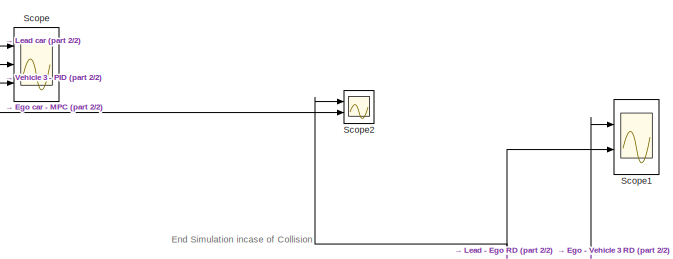
[diagram: root canvas - part 1/2, top center region]
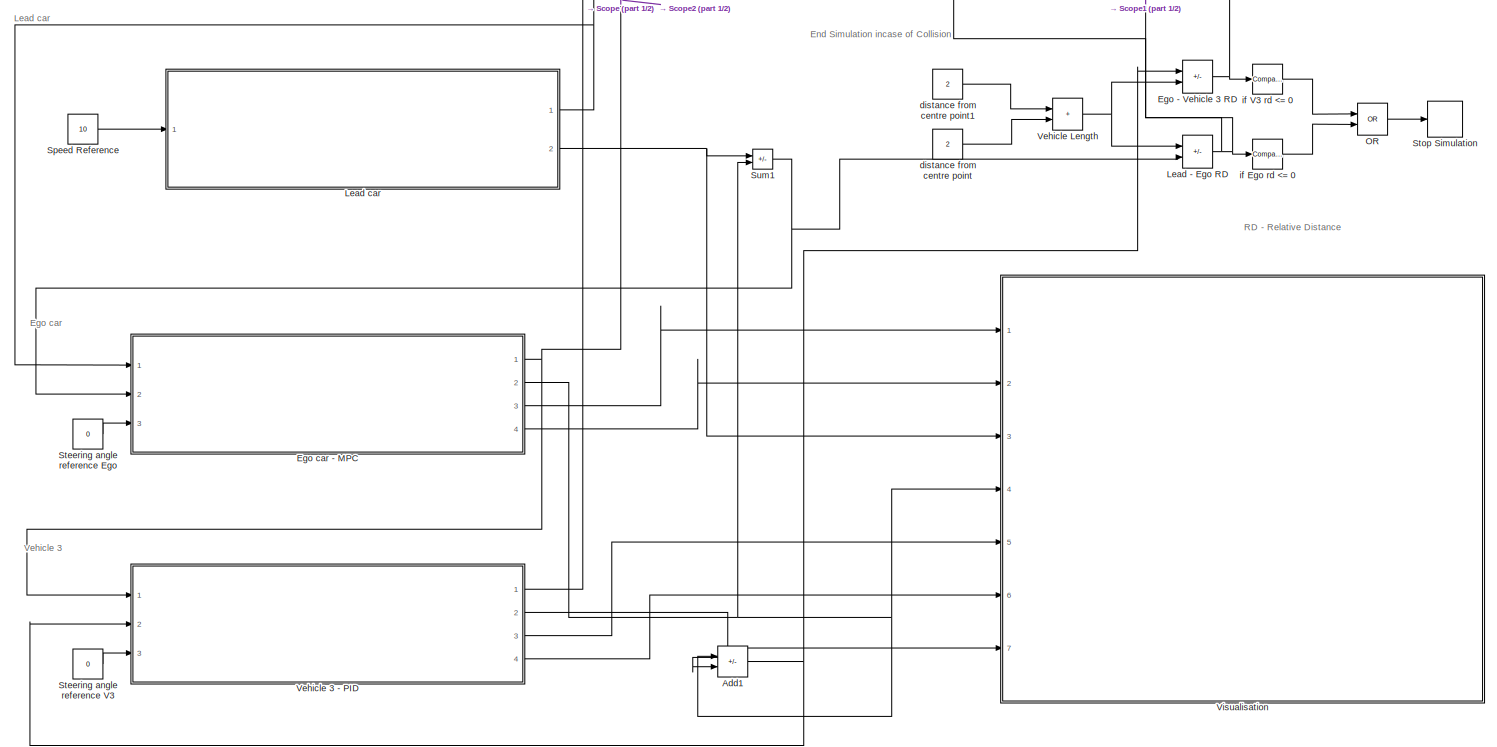
[diagram: root canvas - part 2/2, most of the canvas]
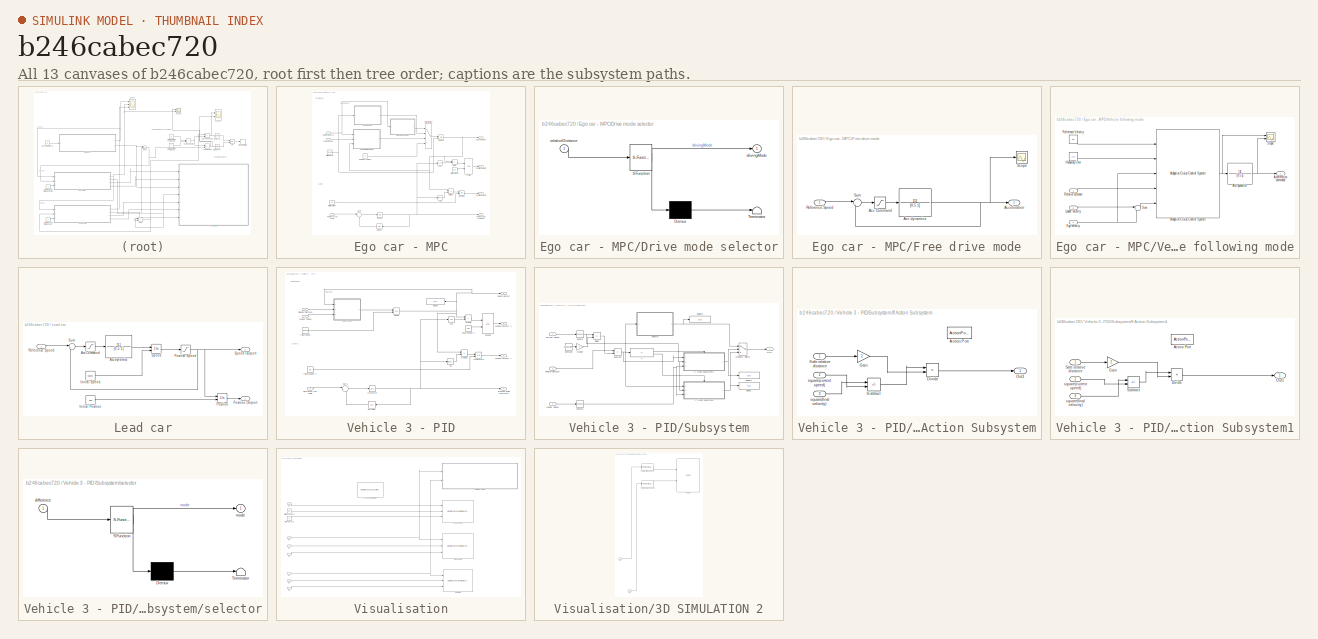
[diagram: thumbnail index - all 13 canvases of the model, root first then tree order]
MODEL slx_b246cabec720
KIND model
CONFIG AbsTol = auto
CONFIG EnableMultiTasking = off
CONFIG FixedStep = auto
CONFIG MaxStep = auto
CONFIG MinStep = auto
CONFIG RelTol = 1e-3
CONFIG SampleTimeConstraint = Unconstrained
CONFIG SolverName = VariableStepAuto
CONFIG StartTime = 0.0
CONFIG StopTime = 100
BLOCK [Sum] Add1
  IconShape = rectangular
  Inputs = +-
  Ports = [2, 1]
BLOCK [Sum] Ego - Vehicle 3 RD
  IconShape = rectangular
  Inputs = +-
  Ports = [2, 1]
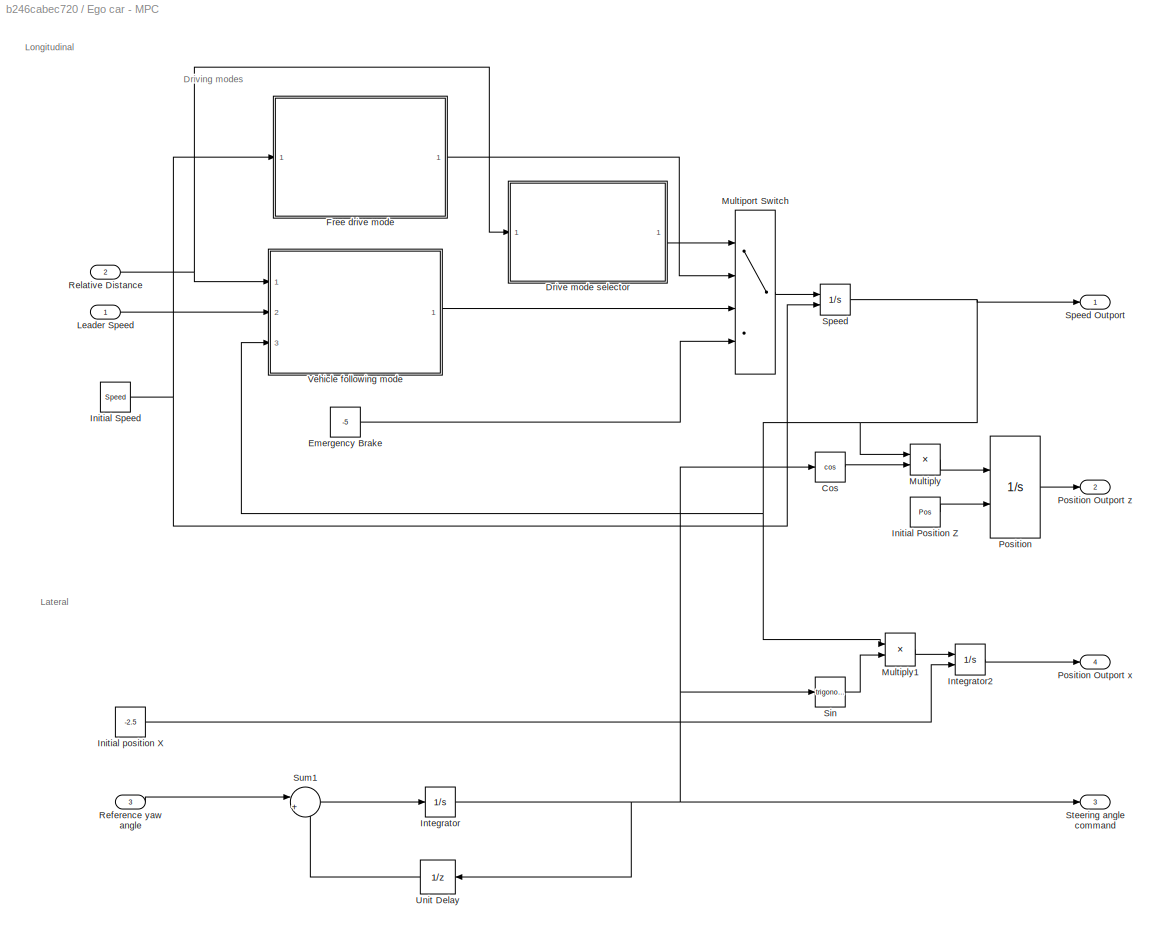
BLOCK [SubSystem] Ego car - MPC
  Ports = [3, 4]
  RequestExecContextInheritance = off
BLOCK [Trigonometry] Ego car - MPC/Cos
  Operator = cos
  Ports = [1, 1]
BLOCK [SubSystem] Ego car - MPC/Drive mode selector
  ErrorFcn = Stateflow.Translate.translate
  PermitHierarchicalResolution = ExplicitOnly
  Ports = [1, 1]
  RequestExecContextInheritance = off
  SFBlockType = Chart
  TreatAsAtomicUnit = on
BLOCK [Demux] Ego car - MPC/Drive mode selector/ Demux 
  Outputs = 1
  Ports = [1, 1]
BLOCK [S-Function] Ego car - MPC/Drive mode selector/ SFunction 
  EnableBusSupport = on
  FunctionName = sf_sfun
  PortCounts = [1 2]
  Ports = [1, 2]
  SFcnIsStateOwnerBlock = off
  SFunctionDeploymentMode = off
  Tag = Stateflow S-Function 3
BLOCK [Terminator] Ego car - MPC/Drive mode selector/ Terminator 
BLOCK [Outport] Ego car - MPC/Drive mode selector/drivingMode
  VectorParamsAs1DForOutWhenUnconnected = off
BLOCK [Inport] Ego car - MPC/Drive mode selector/relativeDistance
BLOCK [Constant] Ego car - MPC/Emergency Brake
  Value = -5
BLOCK [SubSystem] Ego car - MPC/Free drive mode
  Ports = [1, 1]
  RequestExecContextInheritance = off
BLOCK [Saturate] Ego car - MPC/Free drive mode/Acc Command
  LowerLimit = -3
  UpperLimit = 3
BLOCK [TransferFcn] Ego car - MPC/Free drive mode/Acc dynamics
  Denominator = [0.5 1]
BLOCK [Outport] Ego car - MPC/Free drive mode/Acceleration
  VectorParamsAs1DForOutWhenUnconnected = off
BLOCK [Inport] Ego car - MPC/Free drive mode/Reference Speed
BLOCK [Scope] Ego car - MPC/Free drive mode/Scope
  Floating = off
  NumInputPorts = 1
  Ports = [1]
  ScopeSpecificationString = Simulink.scopes.TimeScopeBlockCfg('CurrentConfiguration', extmgr.ConfigurationSet(extmgr.Configuration('Core','General UI',true),extmgr.Configuration('Core','Source UI',true),extmgr.Configuration('Sources','WiredSimulink',true,'DataLoggingVariableName','ScopeData4'),extmgr.Configuration('Visuals','Time Domain',true,'SerializedDisplays',{struct('MinYLimReal','-0.375','MaxYLimReal','3.375','YLabelRe...<+1359ch>
BLOCK [Sum] Ego car - MPC/Free drive mode/Sum
  Inputs = |+-
  Ports = [2, 1]
BLOCK [Constant] Ego car - MPC/Initial Position Z
  Value = Pos
BLOCK [Constant] Ego car - MPC/Initial Speed
  Value = Speed
BLOCK [Constant] Ego car - MPC/Initial position X
  Value = -2.5
BLOCK [Integrator] Ego car - MPC/Integrator
  Ports = [1, 1]
BLOCK [Integrator] Ego car - MPC/Integrator2
  InitialConditionSource = external
  Ports = [2, 1]
BLOCK [Inport] Ego car - MPC/Leader Speed
BLOCK [Product] Ego car - MPC/Multiply
  Ports = [2, 1]
BLOCK [Product] Ego car - MPC/Multiply1
  Ports = [2, 1]
BLOCK [MultiPortSwitch] Ego car - MPC/Multiport Switch
  InputSameDT = off
  Ports = [4, 1]
  SaturateOnIntegerOverflow = off
BLOCK [Integrator] Ego car - MPC/Position
  InitialConditionSource = external
  Ports = [2, 1]
BLOCK [Outport] Ego car - MPC/Position Outport x
  Port = 4
  VectorParamsAs1DForOutWhenUnconnected = off
BLOCK [Outport] Ego car - MPC/Position Outport z
  Port = 2
  VectorParamsAs1DForOutWhenUnconnected = off
BLOCK [Inport] Ego car - MPC/Reference yaw angle
  Port = 3
BLOCK [Inport] Ego car - MPC/Relative Distance
  Port = 2
BLOCK [Trigonometry] Ego car - MPC/Sin
  Ports = [1, 1]
BLOCK [Integrator] Ego car - MPC/Speed
  InitialConditionSource = external
  LimitOutput = on
  LowerSaturationLimit = 0
  Ports = [2, 1]
BLOCK [Outport] Ego car - MPC/Speed Outport
  VectorParamsAs1DForOutWhenUnconnected = off
BLOCK [Outport] Ego car - MPC/Steering angle command
  Port = 3
  VectorParamsAs1DForOutWhenUnconnected = off
BLOCK [Sum] Ego car - MPC/Sum1
  Inputs = |+-
  Ports = [2, 1]
BLOCK [UnitDelay] Ego car - MPC/Unit Delay
  HasFrameUpgradeWarning = on
  NameLocation = top
  SampleTime = -1
BLOCK [SubSystem] Ego car - MPC/Vehicle following mode
  Ports = [3, 1]
  RequestExecContextInheritance = off
BLOCK [TransferFcn] Ego car - MPC/Vehicle following mode/Acc dynamics
  Denominator = [0.5 1]
BLOCK [Outport] Ego car - MPC/Vehicle following mode/Acceleration command
  VectorParamsAs1DForOutWhenUnconnected = off
BLOCK [Reference] Ego car - MPC/Vehicle following mode/Adaptive Cruise Control System  REF=mpcadaslib/Adaptive Cruise Control System
  Ports = [5, 1]
  SourceBlock = mpcadaslib/Adaptive Cruise Control System
  SourceProductBaseCode = MP
  SourceType = Adaptive cruise control (ACC) system
BLOCK [Inport] Ego car - MPC/Vehicle following mode/Ego velocity
  Port = 3
BLOCK [Constant] Ego car - MPC/Vehicle following mode/Headway time
  Value = 1.2
BLOCK [Inport] Ego car - MPC/Vehicle following mode/Leader velocity
  Port = 2
BLOCK [Inport] Ego car - MPC/Vehicle following mode/Relative distance
BLOCK [Constant] Ego car - MPC/Vehicle following mode/Rerference Velocity
  Value = 25
BLOCK [Scope] Ego car - MPC/Vehicle following mode/Scope
  Floating = off
  NumInputPorts = 2
  Ports = [2]
  ScopeSpecificationString = Simulink.scopes.TimeScopeBlockCfg('CurrentConfiguration', extmgr.ConfigurationSet(extmgr.Configuration('Core','General UI',true,'FigureColor',[1 1 1]),extmgr.Configuration('Core','Source UI',true),extmgr.Configuration('Sources','WiredSimulink',true,'DataLoggingVariableName','ScopeData3'),extmgr.Configuration('Visuals','Time Domain',true,'SerializedDisplays',{struct('MinYLimReal','-3.375','MaxYLimR...<+1892ch>
BLOCK [Sum] Ego car - MPC/Vehicle following mode/Sum
  Inputs = |+-
  Ports = [2, 1]
BLOCK [Sum] Lead - Ego RD
  IconShape = rectangular
  Inputs = -+
  Ports = [2, 1]
BLOCK [SubSystem] Lead car
  Ports = [1, 2]
  RequestExecContextInheritance = off
BLOCK [Saturate] Lead car/Acc Command
  LowerLimit = -3
  UpperLimit = 2
BLOCK [TransferFcn] Lead car/Acc dynamics
  Denominator = [0.5 1]
BLOCK [Constant] Lead car/Initial Position
  Value = Pos
BLOCK [Constant] Lead car/Initial Speed
  Value = Speed
BLOCK [Integrator] Lead car/Position
  InitialConditionSource = external
  Ports = [2, 1]
BLOCK [Outport] Lead car/Position Outport
  Port = 2
  VectorParamsAs1DForOutWhenUnconnected = off
BLOCK [Saturate] Lead car/Positive Speed
  LowerLimit = 0
  UpperLimit = inf
BLOCK [Inport] Lead car/Reference Speed
BLOCK [Integrator] Lead car/Speed
  InitialConditionSource = external
  Ports = [2, 1]
BLOCK [Outport] Lead car/Speed Outport
  VectorParamsAs1DForOutWhenUnconnected = off
BLOCK [Sum] Lead car/Sum
  Inputs = |+-
  Ports = [2, 1]
BLOCK [Logic] OR
  AllPortsSameDT = off
  IconShape = distinctive
  Operator = OR
  OutDataTypeStr = boolean
  Ports = [2, 1]
BLOCK [Scope] Scope
  Floating = off
  NumInputPorts = 3
  Ports = [3]
  ScopeSpecificationString = Simulink.scopes.TimeScopeBlockCfg('CurrentConfiguration', extmgr.ConfigurationSet(extmgr.Configuration('Core','General UI',true,'FigureColor',[1 1 1]),extmgr.Configuration('Core','Source UI',true),extmgr.Configuration('Sources','WiredSimulink',true,'DataLoggingVariableName','ScopeData1'),extmgr.Configuration('Visuals','Time Domain',true,'SerializedDisplays',{struct('MinYLimReal','4.125','MaxYLimRe...<+1760ch>
BLOCK [Scope] Scope1
  Floating = off
  NumInputPorts = 2
  Ports = [2]
  ScopeSpecificationString = Simulink.scopes.TimeScopeBlockCfg('CurrentConfiguration', extmgr.ConfigurationSet(extmgr.Configuration('Core','General UI',true,'FigureColor',[1 1 1]),extmgr.Configuration('Core','Source UI',true),extmgr.Configuration('Sources','WiredSimulink',true,'DataLoggingVariableName','ScopeData2'),extmgr.Configuration('Visuals','Time Domain',true,'SerializedDisplays',{struct('MinYLimReal','4.07211','MaxYLim...<+1697ch>
BLOCK [Scope] Scope2
  Floating = off
  NumInputPorts = 2
  Ports = [2]
  ScopeSpecificationString = Simulink.scopes.TimeScopeBlockCfg('CurrentConfiguration', extmgr.ConfigurationSet(extmgr.Configuration('Core','General UI',true,'FigureColor',[1 1 1]),extmgr.Configuration('Core','Source UI',true),extmgr.Configuration('Sources','WiredSimulink',true,'DataLoggingVariableName','ScopeData4'),extmgr.Configuration('Visuals','Time Domain',true,'SerializedDisplays',{struct('MinYLimReal','-2.5','MaxYLimRea...<+1788ch>
BLOCK [Constant] Speed Reference
  Value = 10
BLOCK [Constant] Steering angle reference Ego
  Value = 0
BLOCK [Constant] Steering angle reference V3
  Value = 0
BLOCK [Stop] Stop Simulation
BLOCK [Sum] Sum1
  IconShape = rectangular
  Inputs = |+-
  Ports = [2, 1]
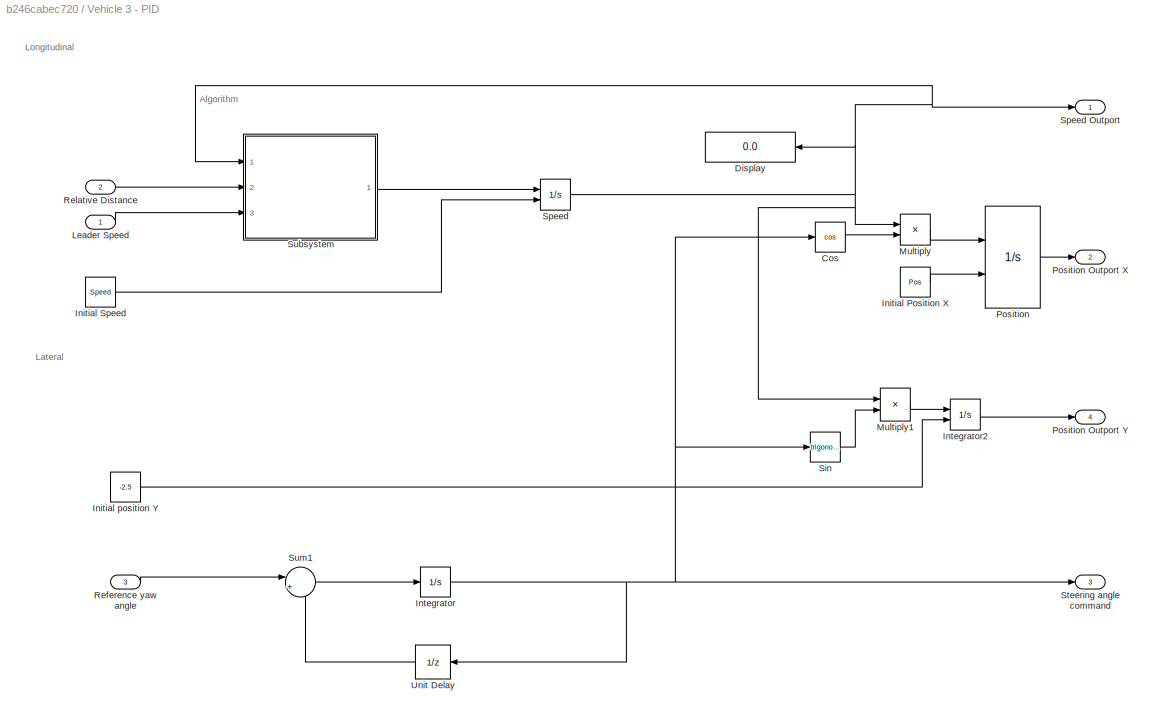
BLOCK [SubSystem] Vehicle 3 - PID
  Ports = [3, 4]
  RequestExecContextInheritance = off
BLOCK [Trigonometry] Vehicle 3 - PID/Cos
  Operator = cos
  Ports = [1, 1]
BLOCK [Display] Vehicle 3 - PID/Display
  Decimation = 1
  NameLocation = top
  Ports = [1]
BLOCK [Constant] Vehicle 3 - PID/Initial Position X
  Value = Pos
BLOCK [Constant] Vehicle 3 - PID/Initial Speed
  Value = Speed
BLOCK [Constant] Vehicle 3 - PID/Initial position Y
  Value = -2.5
BLOCK [Integrator] Vehicle 3 - PID/Integrator
  Ports = [1, 1]
BLOCK [Integrator] Vehicle 3 - PID/Integrator2
  InitialConditionSource = external
  Ports = [2, 1]
BLOCK [Inport] Vehicle 3 - PID/Leader Speed
BLOCK [Product] Vehicle 3 - PID/Multiply
  Ports = [2, 1]
BLOCK [Product] Vehicle 3 - PID/Multiply1
  Ports = [2, 1]
BLOCK [Integrator] Vehicle 3 - PID/Position
  InitialConditionSource = external
  Ports = [2, 1]
BLOCK [Outport] Vehicle 3 - PID/Position Outport X
  Port = 2
  VectorParamsAs1DForOutWhenUnconnected = off
BLOCK [Outport] Vehicle 3 - PID/Position Outport Y
  Port = 4
  VectorParamsAs1DForOutWhenUnconnected = off
BLOCK [Inport] Vehicle 3 - PID/Reference yaw angle
  Port = 3
BLOCK [Inport] Vehicle 3 - PID/Relative Distance
  Port = 2
BLOCK [Trigonometry] Vehicle 3 - PID/Sin
  Ports = [1, 1]
BLOCK [Integrator] Vehicle 3 - PID/Speed
  InitialConditionSource = external
  LimitOutput = on
  LowerSaturationLimit = 0
  Ports = [2, 1]
BLOCK [Outport] Vehicle 3 - PID/Speed Outport
  VectorParamsAs1DForOutWhenUnconnected = off
BLOCK [Outport] Vehicle 3 - PID/Steering angle command
  Port = 3
  VectorParamsAs1DForOutWhenUnconnected = off
BLOCK [SubSystem] Vehicle 3 - PID/Subsystem
  Ports = [3, 1]
  RequestExecContextInheritance = off
BLOCK [Constant] Vehicle 3 - PID/Subsystem/Constant
  Value = acceleration_due_to_gravity
BLOCK [Inport] Vehicle 3 - PID/Subsystem/Current speed
BLOCK [Display] Vehicle 3 - PID/Subsystem/Display
  Decimation = 1
  Ports = [1]
BLOCK [Display] Vehicle 3 - PID/Subsystem/Display1
  Decimation = 1
  Ports = [1]
BLOCK [Display] Vehicle 3 - PID/Subsystem/Display2
  Decimation = 1
  Ports = [1]
BLOCK [Product] Vehicle 3 - PID/Subsystem/Divide
  Inputs = */
  Ports = [2, 1]
BLOCK [If] Vehicle 3 - PID/Subsystem/If
  Ports = [1, 2]
BLOCK [SubSystem] Vehicle 3 - PID/Subsystem/If Action Subsystem
  Ports = [3, 1, 0, 0, 0, 0, 0, 1]
  RequestExecContextInheritance = off
  TreatAsAtomicUnit = on
BLOCK [ActionPort] Vehicle 3 - PID/Subsystem/If Action Subsystem/Action Port
  ActionPortLabel = else
BLOCK [Product] Vehicle 3 - PID/Subsystem/If Action Subsystem/Divide
  Inputs = */
  Ports = [2, 1]
BLOCK [Gain] Vehicle 3 - PID/Subsystem/If Action Subsystem/Gain
  Gain = 2
BLOCK [Outport] Vehicle 3 - PID/Subsystem/If Action Subsystem/Out1
BLOCK [Inport] Vehicle 3 - PID/Subsystem/If Action Subsystem/Safe relative distance
BLOCK [Sum] Vehicle 3 - PID/Subsystem/If Action Subsystem/Subtract
  IconShape = rectangular
  Inputs = +-
  Ports = [2, 1]
BLOCK [Inport] Vehicle 3 - PID/Subsystem/If Action Subsystem/square(current speed)
  Port = 2
BLOCK [Inport] Vehicle 3 - PID/Subsystem/If Action Subsystem/square(final velocity)
  Port = 3
BLOCK [SubSystem] Vehicle 3 - PID/Subsystem/If Action Subsystem1
  Ports = [3, 1, 0, 0, 0, 0, 0, 1]
  RequestExecContextInheritance = off
  TreatAsAtomicUnit = on
BLOCK [ActionPort] Vehicle 3 - PID/Subsystem/If Action Subsystem1/Action Port
  ActionPortLabel = if(u1 > 0)
BLOCK [Product] Vehicle 3 - PID/Subsystem/If Action Subsystem1/Divide
  Inputs = */
  Ports = [2, 1]
BLOCK [Gain] Vehicle 3 - PID/Subsystem/If Action Subsystem1/Gain
  Gain = 2
BLOCK [Outport] Vehicle 3 - PID/Subsystem/If Action Subsystem1/Out1
BLOCK [Inport] Vehicle 3 - PID/Subsystem/If Action Subsystem1/Safe relative distance
BLOCK [Sum] Vehicle 3 - PID/Subsystem/If Action Subsystem1/Subtract
  IconShape = rectangular
  Inputs = +-
  Ports = [2, 1]
BLOCK [Inport] Vehicle 3 - PID/Subsystem/If Action Subsystem1/square(current speed)
  Port = 2
BLOCK [Inport] Vehicle 3 - PID/Subsystem/If Action Subsystem1/square(final velocity)
  Port = 3
BLOCK [Inport] Vehicle 3 - PID/Subsystem/Leader Speed
  Port = 3
BLOCK [Gain] Vehicle 3 - PID/Subsystem/Multiply
  Gain = 2
BLOCK [MultiPortSwitch] Vehicle 3 - PID/Subsystem/Multiport Switch
  InputSameDT = off
  Inputs = 2
  Ports = [3, 1]
  SaturateOnIntegerOverflow = off
BLOCK [Outport] Vehicle 3 - PID/Subsystem/Out1
BLOCK [Inport] Vehicle 3 - PID/Subsystem/Relative Distance
  Port = 2
BLOCK [Math] Vehicle 3 - PID/Subsystem/Square
  Operator = square
  Ports = [1, 1]
BLOCK [Math] Vehicle 3 - PID/Subsystem/Square1
  Operator = square
  Ports = [1, 1]
BLOCK [Sum] Vehicle 3 - PID/Subsystem/Subtract
  IconShape = rectangular
  Inputs = +-
  Ports = [2, 1]
BLOCK [SubSystem] Vehicle 3 - PID/Subsystem/selector
  ErrorFcn = Stateflow.Translate.translate
  PermitHierarchicalResolution = ExplicitOnly
  Ports = [1, 1]
  RequestExecContextInheritance = off
  SFBlockType = Chart
  TreatAsAtomicUnit = on
BLOCK [Demux] Vehicle 3 - PID/Subsystem/selector/ Demux 
  Outputs = 1
  Ports = [1, 1]
BLOCK [S-Function] Vehicle 3 - PID/Subsystem/selector/ SFunction 
  EnableBusSupport = on
  FunctionName = sf_sfun
  PortCounts = [1 2]
  Ports = [1, 2]
  SFcnIsStateOwnerBlock = off
  SFunctionDeploymentMode = off
  Tag = Stateflow S-Function 1
BLOCK [Terminator] Vehicle 3 - PID/Subsystem/selector/ Terminator 
BLOCK [Inport] Vehicle 3 - PID/Subsystem/selector/difference
BLOCK [Outport] Vehicle 3 - PID/Subsystem/selector/mode
  VectorParamsAs1DForOutWhenUnconnected = off
BLOCK [Sum] Vehicle 3 - PID/Sum1
  Inputs = |+-
  Ports = [2, 1]
BLOCK [UnitDelay] Vehicle 3 - PID/Unit Delay
  HasFrameUpgradeWarning = on
  NameLocation = top
  SampleTime = -1
BLOCK [Sum] Vehicle Length
  IconShape = rectangular
  Inputs = +|+
  Ports = [2, 1]
BLOCK [SubSystem] Visualisation
  Ports = [7]
  RequestExecContextInheritance = off
BLOCK [SubSystem] Visualisation/3D SIMULATION 2
  Commented = on
  Ports = [2]
  RequestExecContextInheritance = off
BLOCK [Inport] Visualisation/3D SIMULATION 2/In1
BLOCK [Inport] Visualisation/3D SIMULATION 2/In2
  Port = 2
BLOCK [Reference] Visualisation/3D SIMULATION 2/VR Signal Expander  REF=vrlib/VR Signal Expander
  Ports = [1, 1]
  SourceBlock = vrlib/VR Signal Expander
  SourceProductBaseCode = SL
  SourceType = VR Signal Expander
BLOCK [Reference] Visualisation/3D SIMULATION 2/VR Signal Expander1  REF=vrlib/VR Signal Expander
  Ports = [1, 1]
  SourceBlock = vrlib/VR Signal Expander
  SourceProductBaseCode = SL
  SourceType = VR Signal Expander
BLOCK [Reference] Visualisation/3D SIMULATION 2/VR Sink  REF=vrlib/VR Sink
  InstantiateOnLoad = on
  Ports = [2]
  SourceBlock = vrlib/VR Sink
  SourceProductBaseCode = SL
  SourceType = Virtual Reality Sink
BLOCK [Reference] Visualisation/Ego Vehicle  REF=sim3dautolib/Simulation 3D Vehicle with Ground Following
  Ports = [3]
  Priority = -1
  SourceBlock = sim3dautolib/Simulation 3D Vehicle with Ground Following
  SourceProductBaseCode = DR,UV,VE
  SourceType = Simulation 3D Vehicle with Ground Following
BLOCK [Inport] Visualisation/In1
BLOCK [Inport] Visualisation/In2
  Port = 2
BLOCK [Inport] Visualisation/In3
  Port = 3
BLOCK [Inport] Visualisation/In4
  Port = 4
BLOCK [Inport] Visualisation/In5
  Port = 5
BLOCK [Inport] Visualisation/In6
  Port = 6
BLOCK [Inport] Visualisation/In7
  Port = 7
BLOCK [Reference] Visualisation/Lead Vehicle  REF=sim3dautolib/Simulation 3D Vehicle with Ground Following
  Ports = [3]
  Priority = -1
  SourceBlock = sim3dautolib/Simulation 3D Vehicle with Ground Following
  SourceProductBaseCode = DR,UV,VE
  SourceType = Simulation 3D Vehicle with Ground Following
BLOCK [Reference] Visualisation/Scene Configuration  REF=sim3dlib/Simulation 3D Scene Configuration
  Ports = []
  Priority = 0
  SourceBlock = sim3dlib/Simulation 3D Scene Configuration
  SourceProductBaseCode = DR,UV,VE
  SourceType = Simulation 3D Scene Configuration
BLOCK [Reference] Visualisation/Vehicle 3  REF=sim3dautolib/Simulation 3D Vehicle with Ground Following
  Ports = [3]
  Priority = -1
  SourceBlock = sim3dautolib/Simulation 3D Vehicle with Ground Following
  SourceProductBaseCode = DR,UV,VE
  SourceType = Simulation 3D Vehicle with Ground Following
BLOCK [Constant] Visualisation/initialYPosLead
  Value = -2.5
BLOCK [Constant] Visualisation/intialYawLead
  Value = 0
BLOCK [Constant] distance from centre point
  Value = 2
BLOCK [Constant] distance from centre point1
  Value = 2
BLOCK [Reference] if Ego rd <= 0  REF=simulink/Logic and Bit
Operations/Compare
To Constant
  Ports = [1, 1]
  SourceBlock = simulink/Logic and Bit\nOperations/Compare\nTo Constant
  SourceProductBaseCode = SL
  SourceType = Compare To Constant
BLOCK [Reference] if V3 rd <= 0  REF=simulink/Logic and Bit
Operations/Compare
To Constant
  Ports = [1, 1]
  SourceBlock = simulink/Logic and Bit\nOperations/Compare\nTo Constant
  SourceProductBaseCode = SL
  SourceType = Compare To Constant
ANNOTATION (root): RD - Relative Distance
ANNOTATION (root): Ego car
ANNOTATION (root): End Simulation incase of Collision
ANNOTATION (root): Lead car
ANNOTATION (root): Vehicle 3
ANNOTATION Ego car - MPC: Driving modes
ANNOTATION Ego car - MPC: Lateral
ANNOTATION Ego car - MPC: Longitudinal
ANNOTATION Vehicle 3 - PID: Algorithm
ANNOTATION Vehicle 3 - PID: Lateral
ANNOTATION Vehicle 3 - PID: Longitudinal
NET Add1:1 -> Ego - Vehicle 3 RD:1, Vehicle 3 - PID:2
NET Ego - Vehicle 3 RD:1 -> Scope1:1, if V3 rd <= 0:1
LINE Ego car - MPC/Cos:1 -> Ego car - MPC/Multiply:2
LINE Ego car - MPC/Drive mode selector:1 -> Ego car - MPC/Multiport Switch:1
LINE Ego car - MPC/Emergency Brake:1 -> Ego car - MPC/Multiport Switch:4
LINE Ego car - MPC/Free drive mode/Acc Command:1 -> Ego car - MPC/Free drive mode/Acc dynamics:1
NET Ego car - MPC/Free drive mode/Acc dynamics:1 -> Ego car - MPC/Free drive mode/Acceleration:1, Ego car - MPC/Free drive mode/Scope:1, Ego car - MPC/Free drive mode/Sum:2
LINE Ego car - MPC/Free drive mode/Reference Speed:1 -> Ego car - MPC/Free drive mode/Sum:1
LINE Ego car - MPC/Free drive mode/Sum:1 -> Ego car - MPC/Free drive mode/Acc Command:1
LINE Ego car - MPC/Free drive mode:1 -> Ego car - MPC/Multiport Switch:2
LINE Ego car - MPC/Initial Position Z:1 -> Ego car - MPC/Position:2
NET Ego car - MPC/Initial Speed:1 -> Ego car - MPC/Free drive mode:1, Ego car - MPC/Speed:2
LINE Ego car - MPC/Initial position X:1 -> Ego car - MPC/Integrator2:2
LINE Ego car - MPC/Integrator2:1 -> Ego car - MPC/Position Outport x:1
NET Ego car - MPC/Integrator:1 -> Ego car - MPC/Cos:1, Ego car - MPC/Sin:1, Ego car - MPC/Steering angle command:1, Ego car - MPC/Unit Delay:1
LINE Ego car - MPC/Leader Speed:1 -> Ego car - MPC/Vehicle following mode:2
LINE Ego car - MPC/Multiply1:1 -> Ego car - MPC/Integrator2:1
LINE Ego car - MPC/Multiply:1 -> Ego car - MPC/Position:1
LINE Ego car - MPC/Multiport Switch:1 -> Ego car - MPC/Speed:1
LINE Ego car - MPC/Position:1 -> Ego car - MPC/Position Outport z:1
LINE Ego car - MPC/Reference yaw angle:1 -> Ego car - MPC/Sum1:1
NET Ego car - MPC/Relative Distance:1 -> Ego car - MPC/Drive mode selector:1, Ego car - MPC/Vehicle following mode:1
LINE Ego car - MPC/Sin:1 -> Ego car - MPC/Multiply1:2
NET Ego car - MPC/Speed:1 -> Ego car - MPC/Multiply1:1, Ego car - MPC/Multiply:1, Ego car - MPC/Speed Outport:1, Ego car - MPC/Vehicle following mode:3
LINE Ego car - MPC/Sum1:1 -> Ego car - MPC/Integrator:1
LINE Ego car - MPC/Unit Delay:1 -> Ego car - MPC/Sum1:2
NET Ego car - MPC/Vehicle following mode/Acc dynamics:1 -> Ego car - MPC/Vehicle following mode/Acceleration command:1, Ego car - MPC/Vehicle following mode/Scope:2
NET Ego car - MPC/Vehicle following mode/Adaptive Cruise Control System:1 -> Ego car - MPC/Vehicle following mode/Acc dynamics:1, Ego car - MPC/Vehicle following mode/Scope:1
NET Ego car - MPC/Vehicle following mode/Ego velocity:1 -> Ego car - MPC/Vehicle following mode/Adaptive Cruise Control System:3, Ego car - MPC/Vehicle following mode/Sum:2
LINE Ego car - MPC/Vehicle following mode/Headway time:1 -> Ego car - MPC/Vehicle following mode/Adaptive Cruise Control System:2
LINE Ego car - MPC/Vehicle following mode/Leader velocity:1 -> Ego car - MPC/Vehicle following mode/Sum:1
LINE Ego car - MPC/Vehicle following mode/Relative distance:1 -> Ego car - MPC/Vehicle following mode/Adaptive Cruise Control System:4
LINE Ego car - MPC/Vehicle following mode/Rerference Velocity:1 -> Ego car - MPC/Vehicle following mode/Adaptive Cruise Control System:1
LINE Ego car - MPC/Vehicle following mode/Sum:1 -> Ego car - MPC/Vehicle following mode/Adaptive Cruise Control System:5
LINE Ego car - MPC/Vehicle following mode:1 -> Ego car - MPC/Multiport Switch:3
NET Ego car - MPC:1 -> Scope2:2, Scope:2, Vehicle 3 - PID:1
NET Ego car - MPC:2 -> Add1:1, Sum1:2, Visualisation:4
LINE Ego car - MPC:3 -> Visualisation:1
LINE Ego car - MPC:4 -> Visualisation:2
NET Lead - Ego RD:1 -> Scope1:2, Scope2:1, if Ego rd <= 0:1
LINE Lead car/Acc Command:1 -> Lead car/Acc dynamics:1
LINE Lead car/Acc dynamics:1 -> Lead car/Speed:1
LINE Lead car/Initial Position:1 -> Lead car/Position:2
LINE Lead car/Initial Speed:1 -> Lead car/Speed:2
LINE Lead car/Position:1 -> Lead car/Position Outport:1
NET Lead car/Positive Speed:1 -> Lead car/Position:1, Lead car/Speed Outport:1, Lead car/Sum:2
LINE Lead car/Reference Speed:1 -> Lead car/Sum:1
LINE Lead car/Speed:1 -> Lead car/Positive Speed:1
LINE Lead car/Sum:1 -> Lead car/Acc Command:1
NET Lead car:1 -> Ego car - MPC:1, Scope:1
NET Lead car:2 -> Sum1:1, Visualisation:3
LINE OR:1 -> Stop Simulation:1
LINE Speed Reference:1 -> Lead car:1
LINE Steering angle reference Ego:1 -> Ego car - MPC:3
LINE Steering angle reference V3:1 -> Vehicle 3 - PID:3
NET Sum1:1 -> Ego car - MPC:2, Lead - Ego RD:2
LINE Vehicle 3 - PID/Cos:1 -> Vehicle 3 - PID/Multiply:2
LINE Vehicle 3 - PID/Initial Position X:1 -> Vehicle 3 - PID/Position:2
LINE Vehicle 3 - PID/Initial Speed:1 -> Vehicle 3 - PID/Speed:2
LINE Vehicle 3 - PID/Initial position Y:1 -> Vehicle 3 - PID/Integrator2:2
LINE Vehicle 3 - PID/Integrator2:1 -> Vehicle 3 - PID/Position Outport Y:1
NET Vehicle 3 - PID/Integrator:1 -> Vehicle 3 - PID/Cos:1, Vehicle 3 - PID/Sin:1, Vehicle 3 - PID/Steering angle command:1, Vehicle 3 - PID/Unit Delay:1
LINE Vehicle 3 - PID/Leader Speed:1 -> Vehicle 3 - PID/Subsystem:3
LINE Vehicle 3 - PID/Multiply1:1 -> Vehicle 3 - PID/Integrator2:1
LINE Vehicle 3 - PID/Multiply:1 -> Vehicle 3 - PID/Position:1
LINE Vehicle 3 - PID/Position:1 -> Vehicle 3 - PID/Position Outport X:1
LINE Vehicle 3 - PID/Reference yaw angle:1 -> Vehicle 3 - PID/Sum1:1
LINE Vehicle 3 - PID/Relative Distance:1 -> Vehicle 3 - PID/Subsystem:2
LINE Vehicle 3 - PID/Sin:1 -> Vehicle 3 - PID/Multiply1:2
NET Vehicle 3 - PID/Speed:1 -> Vehicle 3 - PID/Display:1, Vehicle 3 - PID/Multiply1:1, Vehicle 3 - PID/Multiply:1, Vehicle 3 - PID/Speed Outport:1, Vehicle 3 - PID/Subsystem:1
LINE Vehicle 3 - PID/Subsystem/Constant:1 -> Vehicle 3 - PID/Subsystem/Multiply:1
LINE Vehicle 3 - PID/Subsystem/Current speed:1 -> Vehicle 3 - PID/Subsystem/Square:1
LINE Vehicle 3 - PID/Subsystem/Divide:1 -> Vehicle 3 - PID/Subsystem/Subtract:2
LINE Vehicle 3 - PID/Subsystem/If Action Subsystem/Divide:1 -> Vehicle 3 - PID/Subsystem/If Action Subsystem/Out1:1
LINE Vehicle 3 - PID/Subsystem/If Action Subsystem/Gain:1 -> Vehicle 3 - PID/Subsystem/If Action Subsystem/Divide:2
LINE Vehicle 3 - PID/Subsystem/If Action Subsystem/Safe relative distance:1 -> Vehicle 3 - PID/Subsystem/If Action Subsystem/Gain:1
LINE Vehicle 3 - PID/Subsystem/If Action Subsystem/Subtract:1 -> Vehicle 3 - PID/Subsystem/If Action Subsystem/Divide:1
LINE Vehicle 3 - PID/Subsystem/If Action Subsystem/square(current speed):1 -> Vehicle 3 - PID/Subsystem/If Action Subsystem/Subtract:2
LINE Vehicle 3 - PID/Subsystem/If Action Subsystem/square(final velocity):1 -> Vehicle 3 - PID/Subsystem/If Action Subsystem/Subtract:1
LINE Vehicle 3 - PID/Subsystem/If Action Subsystem1/Divide:1 -> Vehicle 3 - PID/Subsystem/If Action Subsystem1/Out1:1
LINE Vehicle 3 - PID/Subsystem/If Action Subsystem1/Gain:1 -> Vehicle 3 - PID/Subsystem/If Action Subsystem1/Divide:2
LINE Vehicle 3 - PID/Subsystem/If Action Subsystem1/Safe relative distance:1 -> Vehicle 3 - PID/Subsystem/If Action Subsystem1/Gain:1
LINE Vehicle 3 - PID/Subsystem/If Action Subsystem1/Subtract:1 -> Vehicle 3 - PID/Subsystem/If Action Subsystem1/Divide:1
LINE Vehicle 3 - PID/Subsystem/If Action Subsystem1/square(current speed):1 -> Vehicle 3 - PID/Subsystem/If Action Subsystem1/Subtract:2
LINE Vehicle 3 - PID/Subsystem/If Action Subsystem1/square(final velocity):1 -> Vehicle 3 - PID/Subsystem/If Action Subsystem1/Subtract:1
NET Vehicle 3 - PID/Subsystem/If Action Subsystem1:1 -> Vehicle 3 - PID/Subsystem/Display1:1, Vehicle 3 - PID/Subsystem/Multiport Switch:2
NET Vehicle 3 - PID/Subsystem/If Action Subsystem:1 -> Vehicle 3 - PID/Subsystem/Display:1, Vehicle 3 - PID/Subsystem/Multiport Switch:3
LINE Vehicle 3 - PID/Subsystem/If:1 -> Vehicle 3 - PID/Subsystem/If Action Subsystem1:ifaction
LINE Vehicle 3 - PID/Subsystem/If:2 -> Vehicle 3 - PID/Subsystem/If Action Subsystem:ifaction
LINE Vehicle 3 - PID/Subsystem/Leader Speed:1 -> Vehicle 3 - PID/Subsystem/Square1:1
LINE Vehicle 3 - PID/Subsystem/Multiply:1 -> Vehicle 3 - PID/Subsystem/Divide:2
LINE Vehicle 3 - PID/Subsystem/Multiport Switch:1 -> Vehicle 3 - PID/Subsystem/Out1:1
LINE Vehicle 3 - PID/Subsystem/Relative Distance:1 -> Vehicle 3 - PID/Subsystem/Subtract:1
NET Vehicle 3 - PID/Subsystem/Square1:1 -> Vehicle 3 - PID/Subsystem/If Action Subsystem1:3, Vehicle 3 - PID/Subsystem/If Action Subsystem:3
NET Vehicle 3 - PID/Subsystem/Square:1 -> Vehicle 3 - PID/Subsystem/Divide:1, Vehicle 3 - PID/Subsystem/If Action Subsystem1:2, Vehicle 3 - PID/Subsystem/If Action Subsystem:2
NET Vehicle 3 - PID/Subsystem/Subtract:1 -> Vehicle 3 - PID/Subsystem/If Action Subsystem1:1, Vehicle 3 - PID/Subsystem/If Action Subsystem:1, Vehicle 3 - PID/Subsystem/If:1, Vehicle 3 - PID/Subsystem/selector:1
NET Vehicle 3 - PID/Subsystem/selector:1 -> Vehicle 3 - PID/Subsystem/Display2:1, Vehicle 3 - PID/Subsystem/Multiport Switch:1
LINE Vehicle 3 - PID/Subsystem:1 -> Vehicle 3 - PID/Speed:1
LINE Vehicle 3 - PID/Sum1:1 -> Vehicle 3 - PID/Integrator:1
LINE Vehicle 3 - PID/Unit Delay:1 -> Vehicle 3 - PID/Sum1:2
LINE Vehicle 3 - PID:1 -> Scope:3
NET Vehicle 3 - PID:2 -> Add1:2, Visualisation:7
LINE Vehicle 3 - PID:3 -> Visualisation:5
LINE Vehicle 3 - PID:4 -> Visualisation:6
NET Vehicle Length:1 -> Ego - Vehicle 3 RD:2, Lead - Ego RD:1
LINE Visualisation/3D SIMULATION 2/In1:1 -> Visualisation/3D SIMULATION 2/VR Signal Expander:1
LINE Visualisation/3D SIMULATION 2/In2:1 -> Visualisation/3D SIMULATION 2/VR Signal Expander1:1
LINE Visualisation/3D SIMULATION 2/VR Signal Expander1:1 -> Visualisation/3D SIMULATION 2/VR Sink:2
LINE Visualisation/3D SIMULATION 2/VR Signal Expander:1 -> Visualisation/3D SIMULATION 2/VR Sink:1
LINE Visualisation/In1:1 -> Visualisation/Ego Vehicle:3
LINE Visualisation/In2:1 -> Visualisation/Ego Vehicle:2
LINE Visualisation/In3:1 -> Visualisation/Lead Vehicle:1
NET Visualisation/In4:1 -> Visualisation/3D SIMULATION 2:1, Visualisation/Ego Vehicle:1
LINE Visualisation/In5:1 -> Visualisation/Vehicle 3:3
LINE Visualisation/In6:1 -> Visualisation/Vehicle 3:2
NET Visualisation/In7:1 -> Visualisation/3D SIMULATION 2:2, Visualisation/Vehicle 3:1
LINE Visualisation/initialYPosLead:1 -> Visualisation/Lead Vehicle:2
LINE Visualisation/intialYawLead:1 -> Visualisation/Lead Vehicle:3
LINE distance from centre point1:1 -> Vehicle Length:1
LINE distance from centre point:1 -> Vehicle Length:2
LINE if Ego rd <= 0:1 -> OR:2
LINE if V3 rd <= 0:1 -> OR:1
note: NET lines group one-source signal fan-out (src -> all destinations, sorted); 1:1 wires keep LINE
CHART Vehicle 3 - PID/Subsystem/selector states=2 transitions=3
  STATE_LABEL 'positive\nentry:\nmode = 1;'
  STATE_LABEL 'negative\nentry:\nmode = 2;'
CHART Ego car - MPC/Drive mode selector states=3 transitions=6
  STATE_LABEL 'FreeDrive\nentry:\ndrivingMode = 1;'
  STATE_LABEL 'VehicleFollowing\nentry:\ndrivingMode = 2;'
  STATE_LABEL 'EmergencyBrake\nentry:\ndrivingMode = 3;'
CHART  states=0 transitions=0
CHART  states=0 transitions=0
